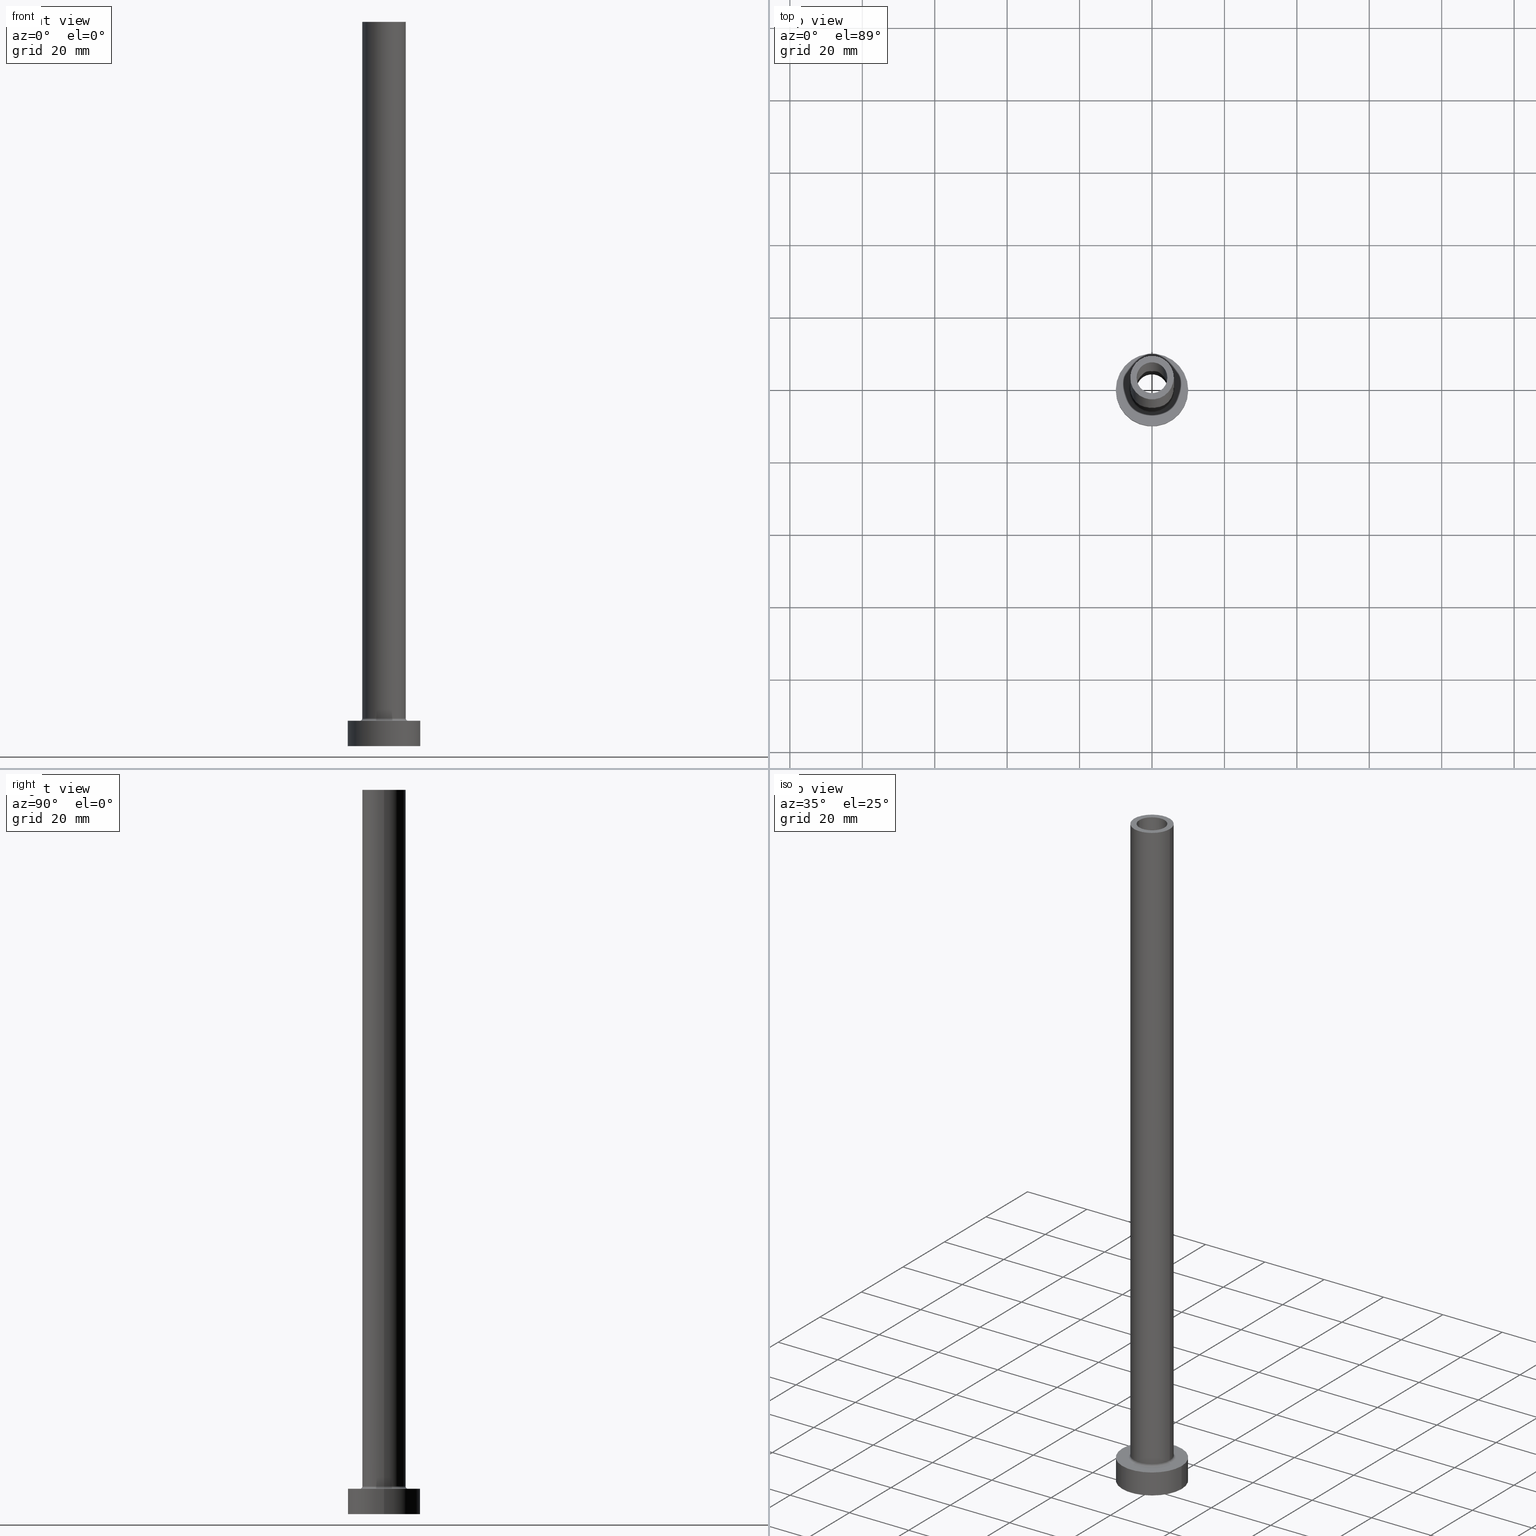
[diagram: canonical four-view strip — front | top / right | iso, engineering-drawing reading convention]
A machine part, canonical four-view strip (front | top / right | iso — engineering-drawing reading convention). The complete STEP part file that produces these views, byte-faithful:
ISO-10303-21;
HEADER;
FILE_DESCRIPTION (( 'STEP AP203' ),
    '1' );
FILE_NAME ('1fbf.STEP',
    '2023-02-13T11:57:50',
    ( '' ),
    ( '' ),
    'SwSTEP 2.0',
    'SolidWorks 2019',
    '' );
FILE_SCHEMA (( 'CONFIG_CONTROL_DESIGN' ));
ENDSEC;

DATA;
#1 = DIRECTION ( 'NONE',  ( 1.000000000000000000, 0.000000000000000000, 0.000000000000000000 ) ) ;
#2 = ADVANCED_FACE ( 'NONE', ( #433 ), #375, .F. ) ;
#3 = ORIENTED_EDGE ( 'NONE', *, *, #305, .T. ) ;
#4 = LINE ( 'NONE', #243, #90 ) ;
#5 = CARTESIAN_POINT ( 'NONE',  ( 4.400000000000000355, 5.388445916248354013E-16, 0.000000000000000000 ) ) ;
#6 = DATE_TIME_ROLE ( 'creation_date' ) ;
#7 = CARTESIAN_POINT ( 'NONE',  ( -4.400000000000000355, 0.000000000000000000, 167.4450793488832403 ) ) ;
#8 = PERSON_AND_ORGANIZATION ( #291, #121 ) ;
#9 = EDGE_CURVE ( 'NONE', #129, #127, #275, .T. ) ;
#10 = DIRECTION ( 'NONE',  ( 0.000000000000000000, 0.000000000000000000, 1.000000000000000000 ) ) ;
#11 = DIRECTION ( 'NONE',  ( 1.000000000000000000, 0.000000000000000000, 0.000000000000000000 ) ) ;
#12 = ORIENTED_EDGE ( 'NONE', *, *, #72, .F. ) ;
#13 = FACE_OUTER_BOUND ( 'NONE', #262, .T. ) ;
#14 = CARTESIAN_POINT ( 'NONE',  ( -6.700000000000001066, 8.205133554287267548E-16, 7.000000000000006217 ) ) ;
#15 = ORIENTED_EDGE ( 'NONE', *, *, #426, .T. ) ;
#16 = EDGE_CURVE ( 'NONE', #53, #230, #4, .T. ) ;
#17 = CARTESIAN_POINT ( 'NONE',  ( 0.000000000000000000, 0.000000000000000000, 7.700000000000012612 ) ) ;
#18 = CARTESIAN_POINT ( 'NONE',  ( 0.000000000000000000, 0.000000000000000000, 200.0000000000000000 ) ) ;
#19 = EDGE_LOOP ( 'NONE', ( #204, #50 ) ) ;
#20 =( GEOMETRIC_REPRESENTATION_CONTEXT ( 3 ) GLOBAL_UNCERTAINTY_ASSIGNED_CONTEXT ( ( #393 ) ) GLOBAL_UNIT_ASSIGNED_CONTEXT ( ( #372, #442, #363 ) ) REPRESENTATION_CONTEXT ( 'NONE', 'WORKASPACE' ) );
#21 = FACE_OUTER_BOUND ( 'NONE', #318, .T. ) ;
#22 = DIRECTION ( 'NONE',  ( 0.000000000000000000, 0.000000000000000000, 1.000000000000000000 ) ) ;
#23 = ORIENTED_EDGE ( 'NONE', *, *, #369, .F. ) ;
#24 = CYLINDRICAL_SURFACE ( 'NONE', #415, 4.400000000000000355 ) ;
#25 = AXIS2_PLACEMENT_3D ( 'NONE', #56, #303, #195 ) ;
#26 = LOCAL_TIME ( 12, 57, 50.00000000000000000, #387 ) ;
#27 = CYLINDRICAL_SURFACE ( 'NONE', #25, 10.00000000000000000 ) ;
#28 = DIRECTION ( 'NONE',  ( 0.000000000000000000, -1.000000000000000000, 0.000000000000000000 ) ) ;
#29 = DIRECTION ( 'NONE',  ( -0.000000000000000000, -0.000000000000000000, -1.000000000000000000 ) ) ;
#30 = ADVANCED_FACE ( 'NONE', ( #392, #284 ), #69, .F. ) ;
#31 = ORIENTED_EDGE ( 'NONE', *, *, #172, .F. ) ;
#32 = AXIS2_PLACEMENT_3D ( 'NONE', #78, #215, #298 ) ;
#33 = ORIENTED_EDGE ( 'NONE', *, *, #223, .F. ) ;
#34 = ORIENTED_EDGE ( 'NONE', *, *, #9, .F. ) ;
#35 = ORIENTED_EDGE ( 'NONE', *, *, #288, .T. ) ;
#36 = EDGE_CURVE ( 'NONE', #123, #84, #107, .T. ) ;
#37 = CIRCLE ( 'NONE', #438, 0.7000000000000000666 ) ;
#38 = EDGE_LOOP ( 'NONE', ( #168, #255 ) ) ;
#39 = CARTESIAN_POINT ( 'NONE',  ( 0.000000000000000000, 0.000000000000000000, 200.0000000000000000 ) ) ;
#40 = CARTESIAN_POINT ( 'NONE',  ( 0.000000000000000000, 0.000000000000000000, 200.0000000000000000 ) ) ;
#41 = CARTESIAN_POINT ( 'NONE',  ( 10.00000000000000000, 1.224646799147353256E-15, 0.000000000000000000 ) ) ;
#42 = EDGE_CURVE ( 'NONE', #443, #45, #117, .T. ) ;
#43 = DIRECTION ( 'NONE',  ( -1.000000000000000000, 0.000000000000000000, 0.000000000000000000 ) ) ;
#44 = PERSON_AND_ORGANIZATION_ROLE ( 'design_owner' ) ;
#45 = VERTEX_POINT ( 'NONE', #203 ) ;
#46 = DIRECTION ( 'NONE',  ( 1.000000000000000000, 0.000000000000000000, 0.000000000000000000 ) ) ;
#47 = DIRECTION ( 'NONE',  ( 1.000000000000000000, 0.000000000000000000, 0.000000000000000000 ) ) ;
#48 = EDGE_CURVE ( 'NONE', #207, #140, #145, .T. ) ;
#49 = CARTESIAN_POINT ( 'NONE',  ( 6.700000000000001066, 0.000000000000000000, 7.000000000000006217 ) ) ;
#50 = ORIENTED_EDGE ( 'NONE', *, *, #355, .T. ) ;
#51 = CARTESIAN_POINT ( 'NONE',  ( 0.000000000000000000, 0.000000000000000000, 155.0000000000000284 ) ) ;
#52 = AXIS2_PLACEMENT_3D ( 'NONE', #94, #348, #126 ) ;
#53 = VERTEX_POINT ( 'NONE', #396 ) ;
#54 = DIRECTION ( 'NONE',  ( 0.000000000000000000, 0.000000000000000000, -1.000000000000000000 ) ) ;
#55 = VERTEX_POINT ( 'NONE', #368 ) ;
#56 = CARTESIAN_POINT ( 'NONE',  ( 0.000000000000000000, 0.000000000000000000, 7.000000000000000000 ) ) ;
#57 = DIRECTION ( 'NONE',  ( 0.000000000000000000, 0.000000000000000000, 1.000000000000000000 ) ) ;
#58 = VECTOR ( 'NONE', #354, 1000.000000000000000 ) ;
#59 = CIRCLE ( 'NONE', #314, 4.250000000000000000 ) ;
#60 = DIRECTION ( 'NONE',  ( -0.000000000000000000, -0.000000000000000000, -1.000000000000000000 ) ) ;
#61 = CC_DESIGN_PERSON_AND_ORGANIZATION_ASSIGNMENT ( #448, #229, ( #198 ) ) ;
#62 = DIRECTION ( 'NONE',  ( -0.000000000000000000, -0.000000000000000000, -1.000000000000000000 ) ) ;
#63 = CARTESIAN_POINT ( 'NONE',  ( 0.000000000000000000, 0.000000000000000000, 0.000000000000000000 ) ) ;
#64 = EDGE_LOOP ( 'NONE', ( #454, #391 ) ) ;
#65 = CC_DESIGN_APPROVAL ( #347, ( #267 ) ) ;
#66 = ORIENTED_EDGE ( 'NONE', *, *, #440, .T. ) ;
#67 = VERTEX_POINT ( 'NONE', #49 ) ;
#68 = ADVANCED_FACE ( 'NONE', ( #331 ), #312, .F. ) ;
#69 = PLANE ( 'NONE',  #428 ) ;
#70 = CARTESIAN_POINT ( 'NONE',  ( 0.000000000000000000, 0.000000000000000000, 155.0000000000000284 ) ) ;
#71 = CALENDAR_DATE ( 2023, 13, 2 ) ;
#72 = EDGE_CURVE ( 'NONE', #353, #129, #226, .T. ) ;
#73 = DIRECTION ( 'NONE',  ( 0.000000000000000000, 0.000000000000000000, 1.000000000000000000 ) ) ;
#74 = MANIFOLD_SOLID_BREP ( 'Odebrat vysunut�m4', #256 ) ;
#75 = APPROVAL_ROLE ( '' ) ;
#76 = DESIGN_CONTEXT ( 'detailed design', #86, 'design' ) ;
#77 = DIRECTION ( 'NONE',  ( 0.000000000000000000, 0.000000000000000000, -1.000000000000000000 ) ) ;
#78 = CARTESIAN_POINT ( 'NONE',  ( 0.000000000000000000, 0.000000000000000000, 155.0000000000000284 ) ) ;
#79 = CC_DESIGN_SECURITY_CLASSIFICATION ( #198, ( #267 ) ) ;
#80 = CC_DESIGN_PERSON_AND_ORGANIZATION_ASSIGNMENT ( #214, #309, ( #267 ) ) ;
#81 = EDGE_LOOP ( 'NONE', ( #125, #414 ) ) ;
#82 = DIRECTION ( 'NONE',  ( 1.000000000000000000, 0.000000000000000000, 0.000000000000000000 ) ) ;
#83 = DATE_AND_TIME ( #178, #292 ) ;
#84 = VERTEX_POINT ( 'NONE', #362 ) ;
#85 = ADVANCED_BREP_SHAPE_REPRESENTATION ( '1fbf', ( #74, #446 ), #20 ) ;
#86 = APPLICATION_CONTEXT ( 'configuration controlled 3d designs of mechanical parts and assemblies' ) ;
#87 = DIRECTION ( 'NONE',  ( 0.000000000000000000, 0.000000000000000000, -1.000000000000000000 ) ) ;
#88 = ORIENTED_EDGE ( 'NONE', *, *, #199, .F. ) ;
#89 = DIRECTION ( 'NONE',  ( 0.000000000000000000, 0.000000000000000000, 1.000000000000000000 ) ) ;
#90 = VECTOR ( 'NONE', #394, 1000.000000000000000 ) ;
#91 = AXIS2_PLACEMENT_3D ( 'NONE', #371, #10, #187 ) ;
#92 = ORIENTED_EDGE ( 'NONE', *, *, #36, .F. ) ;
#93 = APPROVAL ( #115, 'NEUR�EN�' ) ;
#94 = CARTESIAN_POINT ( 'NONE',  ( 0.000000000000000000, 0.000000000000000000, 0.000000000000000000 ) ) ;
#95 = CYLINDRICAL_SURFACE ( 'NONE', #421, 6.000000000000000888 ) ;
#96 = CYLINDRICAL_SURFACE ( 'NONE', #228, 4.250000000000000000 ) ;
#97 = AXIS2_PLACEMENT_3D ( 'NONE', #40, #245, #148 ) ;
#98 = PRODUCT_RELATED_PRODUCT_CATEGORY ( 'detail', '', ( #220 ) ) ;
#99 = CARTESIAN_POINT ( 'NONE',  ( -6.700000000000001066, 8.205133554287267548E-16, 7.700000000000012612 ) ) ;
#100 = ORIENTED_EDGE ( 'NONE', *, *, #412, .F. ) ;
#101 = ORIENTED_EDGE ( 'NONE', *, *, #288, .F. ) ;
#102 = AXIS2_PLACEMENT_3D ( 'NONE', #143, #437, #285 ) ;
#103 = EDGE_CURVE ( 'NONE', #435, #225, #147, .T. ) ;
#104 = DATE_TIME_ROLE ( 'classification_date' ) ;
#105 = ORIENTED_EDGE ( 'NONE', *, *, #103, .T. ) ;
#106 = CARTESIAN_POINT ( 'NONE',  ( 0.000000000000000000, 0.000000000000000000, 7.700000000000012612 ) ) ;
#107 = LINE ( 'NONE', #425, #58 ) ;
#108 = PERSON_AND_ORGANIZATION_ROLE ( 'creator' ) ;
#109 = CC_DESIGN_DATE_AND_TIME_ASSIGNMENT ( #83, #6, ( #189 ) ) ;
#110 = AXIS2_PLACEMENT_3D ( 'NONE', #99, #386, #458 ) ;
#111 = FACE_BOUND ( 'NONE', #236, .T. ) ;
#112 = CALENDAR_DATE ( 2023, 13, 2 ) ;
#113 = PLANE ( 'NONE',  #217 ) ;
#114 = CARTESIAN_POINT ( 'NONE',  ( -6.000000000000000888, 0.000000000000000000, 7.700000000000012612 ) ) ;
#115 = APPROVAL_STATUS ( 'not_yet_approved' ) ;
#116 = EDGE_LOOP ( 'NONE', ( #186, #265, #188, #173 ) ) ;
#117 = CIRCLE ( 'NONE', #138, 6.000000000000000888 ) ;
#118 = DIRECTION ( 'NONE',  ( 0.000000000000000000, 0.000000000000000000, 1.000000000000000000 ) ) ;
#119 = ADVANCED_FACE ( 'NONE', ( #218, #13 ), #113, .T. ) ;
#120 = AXIS2_PLACEMENT_3D ( 'NONE', #418, #57, #131 ) ;
#121 = ORGANIZATION ( 'NEUR�EN�', 'NEUR�EN�', '' ) ;
#122 = PERSON_AND_ORGANIZATION ( #291, #121 ) ;
#123 = VERTEX_POINT ( 'NONE', #364 ) ;
#124 = FACE_OUTER_BOUND ( 'NONE', #316, .T. ) ;
#125 = ORIENTED_EDGE ( 'NONE', *, *, #341, .F. ) ;
#126 = DIRECTION ( 'NONE',  ( 1.000000000000000000, 0.000000000000000000, 0.000000000000000000 ) ) ;
#127 = VERTEX_POINT ( 'NONE', #41 ) ;
#128 = DIRECTION ( 'NONE',  ( -0.000000000000000000, -0.000000000000000000, -1.000000000000000000 ) ) ;
#129 = VERTEX_POINT ( 'NONE', #251 ) ;
#130 = FACE_OUTER_BOUND ( 'NONE', #304, .T. ) ;
#131 = DIRECTION ( 'NONE',  ( 1.000000000000000000, 0.000000000000000000, 0.000000000000000000 ) ) ;
#132 = CC_DESIGN_PERSON_AND_ORGANIZATION_ASSIGNMENT ( #8, #44, ( #220 ) ) ;
#133 = SECURITY_CLASSIFICATION_LEVEL ( 'unclassified' ) ;
#134 = LINE ( 'NONE', #234, #377 ) ;
#135 = DIRECTION ( 'NONE',  ( 0.000000000000000000, 0.000000000000000000, 1.000000000000000000 ) ) ;
#136 = DIRECTION ( 'NONE',  ( 1.000000000000000000, 0.000000000000000000, 0.000000000000000000 ) ) ;
#137 = ORIENTED_EDGE ( 'NONE', *, *, #420, .T. ) ;
#138 = AXIS2_PLACEMENT_3D ( 'NONE', #238, #276, #1 ) ;
#139 = AXIS2_PLACEMENT_3D ( 'NONE', #196, #269, #381 ) ;
#140 = VERTEX_POINT ( 'NONE', #244 ) ;
#141 = ORIENTED_EDGE ( 'NONE', *, *, #42, .F. ) ;
#142 = EDGE_CURVE ( 'NONE', #55, #53, #405, .T. ) ;
#143 = CARTESIAN_POINT ( 'NONE',  ( 0.000000000000000000, 0.000000000000000000, 155.0000000000000284 ) ) ;
#144 = APPROVAL_STATUS ( 'not_yet_approved' ) ;
#145 = CIRCLE ( 'NONE', #429, 6.000000000000000888 ) ;
#146 = VECTOR ( 'NONE', #29, 1000.000000000000000 ) ;
#147 = LINE ( 'NONE', #211, #240 ) ;
#148 = DIRECTION ( 'NONE',  ( -1.000000000000000000, 0.000000000000000000, 0.000000000000000000 ) ) ;
#149 = DIRECTION ( 'NONE',  ( 1.000000000000000000, 0.000000000000000000, -0.000000000000000000 ) ) ;
#150 = ORIENTED_EDGE ( 'NONE', *, *, #311, .T. ) ;
#151 = ADVANCED_FACE ( 'NONE', ( #213 ), #325, .F. ) ;
#152 = DIRECTION ( 'NONE',  ( 0.000000000000000000, 0.000000000000000000, 1.000000000000000000 ) ) ;
#153 = ORIENTED_EDGE ( 'NONE', *, *, #237, .T. ) ;
#154 = CARTESIAN_POINT ( 'NONE',  ( 0.000000000000000000, 0.000000000000000000, 7.700000000000012612 ) ) ;
#155 = AXIS2_PLACEMENT_3D ( 'NONE', #457, #455, #270 ) ;
#156 = APPLICATION_PROTOCOL_DEFINITION ( 'international standard', 'config_control_design', 1994, #86 ) ;
#157 = ORIENTED_EDGE ( 'NONE', *, *, #142, .T. ) ;
#158 = CARTESIAN_POINT ( 'NONE',  ( 0.000000000000000000, 0.000000000000000000, 167.4450793488832403 ) ) ;
#159 = VERTEX_POINT ( 'NONE', #402 ) ;
#160 = DIRECTION ( 'NONE',  ( 0.000000000000000000, 0.000000000000000000, -1.000000000000000000 ) ) ;
#161 = CARTESIAN_POINT ( 'NONE',  ( 0.000000000000000000, 0.000000000000000000, 7.000000000000000000 ) ) ;
#162 = VECTOR ( 'NONE', #321, 1000.000000000000000 ) ;
#163 = AXIS2_PLACEMENT_3D ( 'NONE', #18, #184, #47 ) ;
#164 = LINE ( 'NONE', #374, #306 ) ;
#165 = CYLINDRICAL_SURFACE ( 'NONE', #155, 10.00000000000000000 ) ;
#166 = DIRECTION ( 'NONE',  ( 1.000000000000000000, 0.000000000000000000, 0.000000000000000000 ) ) ;
#167 = CALENDAR_DATE ( 2023, 13, 2 ) ;
#168 = ORIENTED_EDGE ( 'NONE', *, *, #403, .T. ) ;
#169 = CIRCLE ( 'NONE', #102, 4.400000000000000355 ) ;
#170 = PERSON_AND_ORGANIZATION ( #291, #121 ) ;
#171 = CARTESIAN_POINT ( 'NONE',  ( 10.00000000000000000, 1.224646799147353256E-15, 7.000000000000000000 ) ) ;
#172 = EDGE_CURVE ( 'NONE', #45, #443, #319, .T. ) ;
#173 = ORIENTED_EDGE ( 'NONE', *, *, #103, .F. ) ;
#174 = CIRCLE ( 'NONE', #110, 0.7000000000000000666 ) ;
#175 = EDGE_CURVE ( 'NONE', #84, #225, #241, .T. ) ;
#176 = ORIENTED_EDGE ( 'NONE', *, *, #311, .F. ) ;
#177 = LINE ( 'NONE', #7, #344 ) ;
#178 = CALENDAR_DATE ( 2023, 13, 2 ) ;
#179 = DIRECTION ( 'NONE',  ( 0.000000000000000000, 0.000000000000000000, 1.000000000000000000 ) ) ;
#180 = DIRECTION ( 'NONE',  ( 1.000000000000000000, 0.000000000000000000, 0.000000000000000000 ) ) ;
#181 = CIRCLE ( 'NONE', #328, 4.400000000000000355 ) ;
#182 = DIRECTION ( 'NONE',  ( 0.000000000000000000, 0.000000000000000000, -1.000000000000000000 ) ) ;
#183 = DIRECTION ( 'NONE',  ( 1.000000000000000000, 0.000000000000000000, 0.000000000000000000 ) ) ;
#184 = DIRECTION ( 'NONE',  ( 0.000000000000000000, 0.000000000000000000, 1.000000000000000000 ) ) ;
#185 = APPLICATION_CONTEXT ( 'configuration controlled 3d designs of mechanical parts and assemblies' ) ;
#186 = ORIENTED_EDGE ( 'NONE', *, *, #449, .T. ) ;
#187 = DIRECTION ( 'NONE',  ( 1.000000000000000000, 0.000000000000000000, 0.000000000000000000 ) ) ;
#188 = ORIENTED_EDGE ( 'NONE', *, *, #403, .F. ) ;
#189 = PRODUCT_DEFINITION ( 'NEZN�M�', '', #267, #76 ) ;
#190 = DIRECTION ( 'NONE',  ( 0.000000000000000000, 0.000000000000000000, 1.000000000000000000 ) ) ;
#191 = AXIS2_PLACEMENT_3D ( 'NONE', #39, #408, #82 ) ;
#192 = VERTEX_POINT ( 'NONE', #360 ) ;
#193 = CARTESIAN_POINT ( 'NONE',  ( 0.000000000000000000, 0.000000000000000000, 200.0000000000000000 ) ) ;
#194 = ORIENTED_EDGE ( 'NONE', *, *, #42, .T. ) ;
#195 = DIRECTION ( 'NONE',  ( -1.000000000000000000, 0.000000000000000000, 0.000000000000000000 ) ) ;
#196 = CARTESIAN_POINT ( 'NONE',  ( 0.000000000000000000, 0.000000000000000000, 7.000000000000000000 ) ) ;
#197 = AXIS2_PLACEMENT_3D ( 'NONE', #70, #73, #46 ) ;
#198 = SECURITY_CLASSIFICATION ( '', '', #133 ) ;
#199 = EDGE_CURVE ( 'NONE', #55, #159, #177, .T. ) ;
#200 = CARTESIAN_POINT ( 'NONE',  ( 0.000000000000000000, 0.000000000000000000, 7.000000000000000000 ) ) ;
#201 = LINE ( 'NONE', #349, #146 ) ;
#202 = APPROVAL_ROLE ( '' ) ;
#203 = CARTESIAN_POINT ( 'NONE',  ( 6.000000000000000888, 7.347880794884120722E-16, 7.700000000000012612 ) ) ;
#204 = ORIENTED_EDGE ( 'NONE', *, *, #72, .T. ) ;
#205 = APPROVAL_DATE_TIME ( #282, #359 ) ;
#206 = EDGE_LOOP ( 'NONE', ( #92, #461, #105, #335 ) ) ;
#207 = VERTEX_POINT ( 'NONE', #444 ) ;
#208 = ADVANCED_FACE ( 'NONE', ( #329, #253 ), #295, .F. ) ;
#209 = ORIENTED_EDGE ( 'NONE', *, *, #440, .F. ) ;
#210 = CIRCLE ( 'NONE', #258, 4.250000000000000000 ) ;
#211 = CARTESIAN_POINT ( 'NONE',  ( -4.250000000000000000, 0.000000000000000000, 200.0000000000000000 ) ) ;
#212 = CYLINDRICAL_SURFACE ( 'NONE', #97, 6.000000000000000888 ) ;
#213 = FACE_OUTER_BOUND ( 'NONE', #116, .T. ) ;
#214 = PERSON_AND_ORGANIZATION ( #291, #121 ) ;
#215 = DIRECTION ( 'NONE',  ( 0.000000000000000000, 0.000000000000000000, 1.000000000000000000 ) ) ;
#216 = COORDINATED_UNIVERSAL_TIME_OFFSET ( 1, 0, .AHEAD. ) ;
#217 = AXIS2_PLACEMENT_3D ( 'NONE', #293, #399, #149 ) ;
#218 = FACE_BOUND ( 'NONE', #219, .T. ) ;
#219 = EDGE_LOOP ( 'NONE', ( #376, #100 ) ) ;
#220 = PRODUCT ( '1fbf', '1fbf', '', ( #286 ) ) ;
#221 = DIRECTION ( 'NONE',  ( 0.000000000000000000, 0.000000000000000000, 1.000000000000000000 ) ) ;
#222 = APPROVAL_DATE_TIME ( #249, #347 ) ;
#223 = EDGE_CURVE ( 'NONE', #140, #207, #279, .T. ) ;
#224 = DIRECTION ( 'NONE',  ( -1.000000000000000000, 0.000000000000000000, 0.000000000000000000 ) ) ;
#225 = VERTEX_POINT ( 'NONE', #322 ) ;
#226 = CIRCLE ( 'NONE', #91, 10.00000000000000000 ) ;
#227 = DIRECTION ( 'NONE',  ( -1.000000000000000000, 0.000000000000000000, 0.000000000000000000 ) ) ;
#228 = AXIS2_PLACEMENT_3D ( 'NONE', #310, #87, #224 ) ;
#229 = PERSON_AND_ORGANIZATION_ROLE ( 'classification_officer' ) ;
#230 = VERTEX_POINT ( 'NONE', #5 ) ;
#231 = FACE_OUTER_BOUND ( 'NONE', #380, .T. ) ;
#232 = DIRECTION ( 'NONE',  ( -1.000000000000000000, 0.000000000000000000, 0.000000000000000000 ) ) ;
#233 = DIRECTION ( 'NONE',  ( -0.000000000000000000, -0.000000000000000000, -1.000000000000000000 ) ) ;
#234 = CARTESIAN_POINT ( 'NONE',  ( -10.00000000000000000, 0.000000000000000000, 7.000000000000000000 ) ) ;
#235 = DATE_AND_TIME ( #167, #280 ) ;
#236 = EDGE_LOOP ( 'NONE', ( #339, #150 ) ) ;
#237 = EDGE_CURVE ( 'NONE', #53, #55, #169, .T. ) ;
#238 = CARTESIAN_POINT ( 'NONE',  ( 0.000000000000000000, 0.000000000000000000, 7.700000000000012612 ) ) ;
#239 = ORIENTED_EDGE ( 'NONE', *, *, #426, .F. ) ;
#240 = VECTOR ( 'NONE', #401, 1000.000000000000000 ) ;
#241 = CIRCLE ( 'NONE', #32, 4.250000000000000000 ) ;
#242 = EDGE_LOOP ( 'NONE', ( #141, #137, #330, #388 ) ) ;
#243 = CARTESIAN_POINT ( 'NONE',  ( 4.400000000000000355, 5.388445916248354013E-16, 167.4450793488832403 ) ) ;
#244 = CARTESIAN_POINT ( 'NONE',  ( 6.000000000000000888, 7.347880794884120722E-16, 200.0000000000000000 ) ) ;
#245 = DIRECTION ( 'NONE',  ( -0.000000000000000000, -0.000000000000000000, -1.000000000000000000 ) ) ;
#246 = CIRCLE ( 'NONE', #52, 4.400000000000000355 ) ;
#247 = LOCAL_TIME ( 12, 57, 50.00000000000000000, #404 ) ;
#248 = FACE_OUTER_BOUND ( 'NONE', #19, .T. ) ;
#249 = DATE_AND_TIME ( #112, #367 ) ;
#250 = ADVANCED_FACE ( 'NONE', ( #111, #248 ), #345, .T. ) ;
#251 = CARTESIAN_POINT ( 'NONE',  ( 10.00000000000000000, 1.224646799147353256E-15, 7.000000000000000000 ) ) ;
#252 = FACE_OUTER_BOUND ( 'NONE', #296, .T. ) ;
#253 = FACE_OUTER_BOUND ( 'NONE', #64, .T. ) ;
#254 = APPROVAL_ROLE ( '' ) ;
#255 = ORIENTED_EDGE ( 'NONE', *, *, #175, .T. ) ;
#256 = CLOSED_SHELL ( 'NONE', ( #151, #297, #68, #261, #378, #274, #250, #30, #456, #119, #2, #323, #208, #395 ) ) ;
#257 = AXIS2_PLACEMENT_3D ( 'NONE', #17, #179, #447 ) ;
#258 = AXIS2_PLACEMENT_3D ( 'NONE', #51, #190, #264 ) ;
#259 = DIRECTION ( 'NONE',  ( 1.000000000000000000, 0.000000000000000000, -0.000000000000000000 ) ) ;
#260 = APPROVAL_DATE_TIME ( #324, #93 ) ;
#261 = ADVANCED_FACE ( 'NONE', ( #130 ), #95, .T. ) ;
#262 = EDGE_LOOP ( 'NONE', ( #389, #300 ) ) ;
#263 = CARTESIAN_POINT ( 'NONE',  ( -10.00000000000000000, 0.000000000000000000, 7.000000000000000000 ) ) ;
#264 = DIRECTION ( 'NONE',  ( 1.000000000000000000, 0.000000000000000000, 0.000000000000000000 ) ) ;
#265 = ORIENTED_EDGE ( 'NONE', *, *, #36, .T. ) ;
#266 = CARTESIAN_POINT ( 'NONE',  ( 0.000000000000000000, 0.000000000000000000, 167.4450793488832403 ) ) ;
#267 = PRODUCT_DEFINITION_FORMATION_WITH_SPECIFIED_SOURCE ( 'LIBOVOLN�', '', #220, .NOT_KNOWN. ) ;
#268 = CC_DESIGN_PERSON_AND_ORGANIZATION_ASSIGNMENT ( #294, #108, ( #189 ) ) ;
#269 = DIRECTION ( 'NONE',  ( 0.000000000000000000, 0.000000000000000000, 1.000000000000000000 ) ) ;
#270 = DIRECTION ( 'NONE',  ( -1.000000000000000000, 0.000000000000000000, 0.000000000000000000 ) ) ;
#271 = PRODUCT_DEFINITION_SHAPE ( 'NONE', 'NONE',  #189 ) ;
#272 = CARTESIAN_POINT ( 'NONE',  ( -4.250000000000000000, 0.000000000000000000, 200.0000000000000000 ) ) ;
#273 = APPROVAL_PERSON_ORGANIZATION ( #122, #93, #254 ) ;
#274 = ADVANCED_FACE ( 'NONE', ( #124 ), #27, .T. ) ;
#275 = LINE ( 'NONE', #171, #162 ) ;
#276 = DIRECTION ( 'NONE',  ( 0.000000000000000000, 0.000000000000000000, 1.000000000000000000 ) ) ;
#277 = COORDINATED_UNIVERSAL_TIME_OFFSET ( 1, 0, .AHEAD. ) ;
#278 = EDGE_LOOP ( 'NONE', ( #283, #31, #373, #176 ) ) ;
#279 = CIRCLE ( 'NONE', #191, 6.000000000000000888 ) ;
#280 = LOCAL_TIME ( 12, 57, 50.00000000000000000, #277 ) ;
#281 = EDGE_CURVE ( 'NONE', #67, #460, #336, .T. ) ;
#282 = DATE_AND_TIME ( #423, #26 ) ;
#283 = ORIENTED_EDGE ( 'NONE', *, *, #420, .F. ) ;
#284 = FACE_OUTER_BOUND ( 'NONE', #81, .T. ) ;
#285 = DIRECTION ( 'NONE',  ( 1.000000000000000000, 0.000000000000000000, 0.000000000000000000 ) ) ;
#286 = MECHANICAL_CONTEXT ( 'NONE', #185, 'mechanical' ) ;
#287 = AXIS2_PLACEMENT_3D ( 'NONE', #106, #135, #136 ) ;
#288 = EDGE_CURVE ( 'NONE', #207, #443, #164, .T. ) ;
#289 = AXIS2_PLACEMENT_3D ( 'NONE', #158, #160, #308 ) ;
#290 = AXIS2_PLACEMENT_3D ( 'NONE', #333, #77, #43 ) ;
#291 = PERSON ( 'NEUR�EN�', 'NEUR�EN�', 'NEUR�EN�', ('NEUR�EN�'), ('NEUR�EN�'), ('NEUR�EN�') ) ;
#292 = LOCAL_TIME ( 12, 57, 50.00000000000000000, #361 ) ;
#293 = CARTESIAN_POINT ( 'NONE',  ( 0.000000000000000000, 0.000000000000000000, 200.0000000000000000 ) ) ;
#294 = PERSON_AND_ORGANIZATION ( #291, #121 ) ;
#295 = PLANE ( 'NONE',  #352 ) ;
#296 = EDGE_LOOP ( 'NONE', ( #302, #407, #35, #194 ) ) ;
#297 = ADVANCED_FACE ( 'NONE', ( #21 ), #451, .F. ) ;
#298 = DIRECTION ( 'NONE',  ( 1.000000000000000000, 0.000000000000000000, 0.000000000000000000 ) ) ;
#299 = DIRECTION ( 'NONE',  ( 1.000000000000000000, 0.000000000000000000, 0.000000000000000000 ) ) ;
#300 = ORIENTED_EDGE ( 'NONE', *, *, #223, .T. ) ;
#301 = CARTESIAN_POINT ( 'NONE',  ( 6.700000000000001066, 0.000000000000000000, 7.700000000000012612 ) ) ;
#302 = ORIENTED_EDGE ( 'NONE', *, *, #434, .F. ) ;
#303 = DIRECTION ( 'NONE',  ( -0.000000000000000000, -0.000000000000000000, -1.000000000000000000 ) ) ;
#304 = EDGE_LOOP ( 'NONE', ( #33, #450, #342, #101 ) ) ;
#305 = EDGE_CURVE ( 'NONE', #127, #192, #397, .T. ) ;
#306 = VECTOR ( 'NONE', #128, 1000.000000000000000 ) ;
#307 = FACE_OUTER_BOUND ( 'NONE', #417, .T. ) ;
#308 = DIRECTION ( 'NONE',  ( -1.000000000000000000, 0.000000000000000000, 0.000000000000000000 ) ) ;
#309 = PERSON_AND_ORGANIZATION_ROLE ( 'design_supplier' ) ;
#310 = CARTESIAN_POINT ( 'NONE',  ( 0.000000000000000000, 0.000000000000000000, 200.0000000000000000 ) ) ;
#311 = EDGE_CURVE ( 'NONE', #460, #67, #459, .T. ) ;
#312 = TOROIDAL_SURFACE ( 'NONE', #257, 6.700000000000001066, 0.6999999999999999556 ) ;
#313 = EDGE_LOOP ( 'NONE', ( #23, #209 ) ) ;
#314 = AXIS2_PLACEMENT_3D ( 'NONE', #193, #22, #166 ) ;
#315 = ORIENTED_EDGE ( 'NONE', *, *, #355, .F. ) ;
#316 = EDGE_LOOP ( 'NONE', ( #34, #12, #15, #332 ) ) ;
#317 = CC_DESIGN_PERSON_AND_ORGANIZATION_ASSIGNMENT ( #400, #365, ( #267 ) ) ;
#318 = EDGE_LOOP ( 'NONE', ( #157, #356, #66, #88 ) ) ;
#319 = CIRCLE ( 'NONE', #327, 6.000000000000000888 ) ;
#320 = CIRCLE ( 'NONE', #163, 4.250000000000000000 ) ;
#321 = DIRECTION ( 'NONE',  ( -0.000000000000000000, -0.000000000000000000, -1.000000000000000000 ) ) ;
#322 = CARTESIAN_POINT ( 'NONE',  ( -4.250000000000000000, 0.000000000000000000, 155.0000000000000284 ) ) ;
#323 = ADVANCED_FACE ( 'NONE', ( #231 ), #24, .F. ) ;
#324 = DATE_AND_TIME ( #71, #247 ) ;
#325 = CYLINDRICAL_SURFACE ( 'NONE', #290, 4.250000000000000000 ) ;
#326 = APPLICATION_PROTOCOL_DEFINITION ( 'international standard', 'config_control_design', 1994, #185 ) ;
#327 = AXIS2_PLACEMENT_3D ( 'NONE', #154, #152, #183 ) ;
#328 = AXIS2_PLACEMENT_3D ( 'NONE', #422, #439, #11 ) ;
#329 = FACE_BOUND ( 'NONE', #38, .T. ) ;
#330 = ORIENTED_EDGE ( 'NONE', *, *, #281, .F. ) ;
#331 = FACE_OUTER_BOUND ( 'NONE', #242, .T. ) ;
#332 = ORIENTED_EDGE ( 'NONE', *, *, #341, .T. ) ;
#333 = CARTESIAN_POINT ( 'NONE',  ( 0.000000000000000000, 0.000000000000000000, 200.0000000000000000 ) ) ;
#334 = DIRECTION ( 'NONE',  ( 0.000000000000000000, 0.000000000000000000, 1.000000000000000000 ) ) ;
#335 = ORIENTED_EDGE ( 'NONE', *, *, #175, .F. ) ;
#336 = CIRCLE ( 'NONE', #445, 6.700000000000001066 ) ;
#337 = APPROVAL_PERSON_ORGANIZATION ( #170, #359, #202 ) ;
#338 = CARTESIAN_POINT ( 'NONE',  ( 0.000000000000000000, 0.000000000000000000, 200.0000000000000000 ) ) ;
#339 = ORIENTED_EDGE ( 'NONE', *, *, #281, .T. ) ;
#340 = CARTESIAN_POINT ( 'NONE',  ( 0.000000000000000000, 0.000000000000000000, 7.000000000000000000 ) ) ;
#341 = EDGE_CURVE ( 'NONE', #192, #127, #384, .T. ) ;
#342 = ORIENTED_EDGE ( 'NONE', *, *, #172, .T. ) ;
#343 = DIRECTION ( 'NONE',  ( 0.000000000000000000, 0.000000000000000000, 1.000000000000000000 ) ) ;
#344 = VECTOR ( 'NONE', #182, 1000.000000000000000 ) ;
#345 = PLANE ( 'NONE',  #139 ) ;
#346 = CC_DESIGN_APPROVAL ( #359, ( #198 ) ) ;
#347 = APPROVAL ( #144, 'NEUR�EN�' ) ;
#348 = DIRECTION ( 'NONE',  ( -0.000000000000000000, -0.000000000000000000, -1.000000000000000000 ) ) ;
#349 = CARTESIAN_POINT ( 'NONE',  ( 6.000000000000000888, 7.347880794884120722E-16, 200.0000000000000000 ) ) ;
#350 = SHAPE_DEFINITION_REPRESENTATION ( #271, #85 ) ;
#351 = CARTESIAN_POINT ( 'NONE',  ( 0.000000000000000000, 0.000000000000000000, 200.0000000000000000 ) ) ;
#352 = AXIS2_PLACEMENT_3D ( 'NONE', #441, #118, #259 ) ;
#353 = VERTEX_POINT ( 'NONE', #263 ) ;
#354 = DIRECTION ( 'NONE',  ( 0.000000000000000000, 0.000000000000000000, -1.000000000000000000 ) ) ;
#355 = EDGE_CURVE ( 'NONE', #129, #353, #358, .T. ) ;
#356 = ORIENTED_EDGE ( 'NONE', *, *, #16, .T. ) ;
#357 = DIRECTION ( 'NONE',  ( 0.000000000000000000, 0.000000000000000000, 1.000000000000000000 ) ) ;
#358 = CIRCLE ( 'NONE', #430, 10.00000000000000000 ) ;
#359 = APPROVAL ( #424, 'NEUR�EN�' ) ;
#360 = CARTESIAN_POINT ( 'NONE',  ( -10.00000000000000000, 0.000000000000000000, 0.000000000000000000 ) ) ;
#361 = COORDINATED_UNIVERSAL_TIME_OFFSET ( 1, 0, .AHEAD. ) ;
#362 = CARTESIAN_POINT ( 'NONE',  ( 4.250000000000000000, 5.204748896376249713E-16, 155.0000000000000284 ) ) ;
#363 =( NAMED_UNIT ( * ) SI_UNIT ( $, .STERADIAN. ) SOLID_ANGLE_UNIT ( ) );
#364 = CARTESIAN_POINT ( 'NONE',  ( 4.250000000000000000, 5.204748896376249713E-16, 200.0000000000000000 ) ) ;
#365 = PERSON_AND_ORGANIZATION_ROLE ( 'creator' ) ;
#366 = AXIS2_PLACEMENT_3D ( 'NONE', #340, #233, #453 ) ;
#367 = LOCAL_TIME ( 12, 57, 50.00000000000000000, #216 ) ;
#368 = CARTESIAN_POINT ( 'NONE',  ( -4.400000000000000355, 0.000000000000000000, 155.0000000000000284 ) ) ;
#369 = EDGE_CURVE ( 'NONE', #159, #230, #246, .T. ) ;
#370 = ORIENTED_EDGE ( 'NONE', *, *, #9, .T. ) ;
#371 = CARTESIAN_POINT ( 'NONE',  ( 0.000000000000000000, 0.000000000000000000, 7.000000000000000000 ) ) ;
#372 =( LENGTH_UNIT ( ) NAMED_UNIT ( * ) SI_UNIT ( .MILLI., .METRE. ) );
#373 = ORIENTED_EDGE ( 'NONE', *, *, #390, .T. ) ;
#374 = CARTESIAN_POINT ( 'NONE',  ( -6.000000000000000888, 0.000000000000000000, 200.0000000000000000 ) ) ;
#375 = TOROIDAL_SURFACE ( 'NONE', #287, 6.700000000000001066, 0.6999999999999999556 ) ;
#376 = ORIENTED_EDGE ( 'NONE', *, *, #449, .F. ) ;
#377 = VECTOR ( 'NONE', #62, 1000.000000000000000 ) ;
#378 = ADVANCED_FACE ( 'NONE', ( #307 ), #165, .T. ) ;
#379 = DIRECTION ( 'NONE',  ( -0.000000000000000000, -0.000000000000000000, -1.000000000000000000 ) ) ;
#380 = EDGE_LOOP ( 'NONE', ( #411, #153, #452, #431 ) ) ;
#381 = DIRECTION ( 'NONE',  ( 1.000000000000000000, 0.000000000000000000, -0.000000000000000000 ) ) ;
#382 = CARTESIAN_POINT ( 'NONE',  ( 0.000000000000000000, 0.000000000000000000, 0.000000000000000000 ) ) ;
#383 = CC_DESIGN_DATE_AND_TIME_ASSIGNMENT ( #235, #104, ( #198 ) ) ;
#384 = CIRCLE ( 'NONE', #406, 10.00000000000000000 ) ;
#385 = DIRECTION ( 'NONE',  ( 0.000000000000000000, 0.000000000000000000, -1.000000000000000000 ) ) ;
#386 = DIRECTION ( 'NONE',  ( 1.224646799147353207E-16, 1.000000000000000000, -0.000000000000000000 ) ) ;
#387 = COORDINATED_UNIVERSAL_TIME_OFFSET ( 1, 0, .AHEAD. ) ;
#388 = ORIENTED_EDGE ( 'NONE', *, *, #390, .F. ) ;
#389 = ORIENTED_EDGE ( 'NONE', *, *, #48, .T. ) ;
#390 = EDGE_CURVE ( 'NONE', #45, #67, #37, .T. ) ;
#391 = ORIENTED_EDGE ( 'NONE', *, *, #237, .F. ) ;
#392 = FACE_BOUND ( 'NONE', #313, .T. ) ;
#393 = UNCERTAINTY_MEASURE_WITH_UNIT (LENGTH_MEASURE( 1.000000000000000082E-05 ), #372, 'distance_accuracy_value', 'NONE');
#394 = DIRECTION ( 'NONE',  ( 0.000000000000000000, 0.000000000000000000, -1.000000000000000000 ) ) ;
#395 = ADVANCED_FACE ( 'NONE', ( #419 ), #96, .F. ) ;
#396 = CARTESIAN_POINT ( 'NONE',  ( 4.400000000000000355, 5.388445916248354013E-16, 155.0000000000000284 ) ) ;
#397 = CIRCLE ( 'NONE', #120, 10.00000000000000000 ) ;
#398 = CC_DESIGN_APPROVAL ( #93, ( #189 ) ) ;
#399 = DIRECTION ( 'NONE',  ( 0.000000000000000000, 0.000000000000000000, 1.000000000000000000 ) ) ;
#400 = PERSON_AND_ORGANIZATION ( #291, #121 ) ;
#401 = DIRECTION ( 'NONE',  ( 0.000000000000000000, 0.000000000000000000, -1.000000000000000000 ) ) ;
#402 = CARTESIAN_POINT ( 'NONE',  ( -4.400000000000000355, 0.000000000000000000, 0.000000000000000000 ) ) ;
#403 = EDGE_CURVE ( 'NONE', #225, #84, #210, .T. ) ;
#404 = COORDINATED_UNIVERSAL_TIME_OFFSET ( 1, 0, .AHEAD. ) ;
#405 = CIRCLE ( 'NONE', #197, 4.400000000000000355 ) ;
#406 = AXIS2_PLACEMENT_3D ( 'NONE', #382, #343, #413 ) ;
#407 = ORIENTED_EDGE ( 'NONE', *, *, #48, .F. ) ;
#408 = DIRECTION ( 'NONE',  ( 0.000000000000000000, 0.000000000000000000, 1.000000000000000000 ) ) ;
#409 = PERSON_AND_ORGANIZATION ( #291, #121 ) ;
#410 = DIRECTION ( 'NONE',  ( 1.000000000000000000, 0.000000000000000000, 0.000000000000000000 ) ) ;
#411 = ORIENTED_EDGE ( 'NONE', *, *, #16, .F. ) ;
#412 = EDGE_CURVE ( 'NONE', #123, #435, #59, .T. ) ;
#413 = DIRECTION ( 'NONE',  ( 1.000000000000000000, 0.000000000000000000, 0.000000000000000000 ) ) ;
#414 = ORIENTED_EDGE ( 'NONE', *, *, #305, .F. ) ;
#415 = AXIS2_PLACEMENT_3D ( 'NONE', #266, #54, #232 ) ;
#416 = DIRECTION ( 'NONE',  ( 1.000000000000000000, 0.000000000000000000, 0.000000000000000000 ) ) ;
#417 = EDGE_LOOP ( 'NONE', ( #315, #370, #3, #239 ) ) ;
#418 = CARTESIAN_POINT ( 'NONE',  ( 0.000000000000000000, 0.000000000000000000, 0.000000000000000000 ) ) ;
#419 = FACE_OUTER_BOUND ( 'NONE', #206, .T. ) ;
#420 = EDGE_CURVE ( 'NONE', #443, #460, #174, .T. ) ;
#421 = AXIS2_PLACEMENT_3D ( 'NONE', #338, #379, #227 ) ;
#422 = CARTESIAN_POINT ( 'NONE',  ( 0.000000000000000000, 0.000000000000000000, 0.000000000000000000 ) ) ;
#423 = CALENDAR_DATE ( 2023, 13, 2 ) ;
#424 = APPROVAL_STATUS ( 'not_yet_approved' ) ;
#425 = CARTESIAN_POINT ( 'NONE',  ( 4.250000000000000000, 5.204748896376249713E-16, 200.0000000000000000 ) ) ;
#426 = EDGE_CURVE ( 'NONE', #353, #192, #134, .T. ) ;
#427 = DIRECTION ( 'NONE',  ( 1.000000000000000000, 0.000000000000000000, -0.000000000000000000 ) ) ;
#428 = AXIS2_PLACEMENT_3D ( 'NONE', #63, #357, #427 ) ;
#429 = AXIS2_PLACEMENT_3D ( 'NONE', #351, #221, #299 ) ;
#430 = AXIS2_PLACEMENT_3D ( 'NONE', #161, #89, #416 ) ;
#431 = ORIENTED_EDGE ( 'NONE', *, *, #369, .T. ) ;
#432 = APPROVAL_PERSON_ORGANIZATION ( #409, #347, #75 ) ;
#433 = FACE_OUTER_BOUND ( 'NONE', #278, .T. ) ;
#434 = EDGE_CURVE ( 'NONE', #140, #45, #201, .T. ) ;
#435 = VERTEX_POINT ( 'NONE', #272 ) ;
#436 = CARTESIAN_POINT ( 'NONE',  ( 0.000000000000000000, 0.000000000000000000, 0.000000000000000000 ) ) ;
#437 = DIRECTION ( 'NONE',  ( 0.000000000000000000, 0.000000000000000000, 1.000000000000000000 ) ) ;
#438 = AXIS2_PLACEMENT_3D ( 'NONE', #301, #28, #385 ) ;
#439 = DIRECTION ( 'NONE',  ( -0.000000000000000000, -0.000000000000000000, -1.000000000000000000 ) ) ;
#440 = EDGE_CURVE ( 'NONE', #230, #159, #181, .T. ) ;
#441 = CARTESIAN_POINT ( 'NONE',  ( 0.000000000000000000, 0.000000000000000000, 155.0000000000000284 ) ) ;
#442 =( NAMED_UNIT ( * ) PLANE_ANGLE_UNIT ( ) SI_UNIT ( $, .RADIAN. ) );
#443 = VERTEX_POINT ( 'NONE', #114 ) ;
#444 = CARTESIAN_POINT ( 'NONE',  ( -6.000000000000000888, 0.000000000000000000, 200.0000000000000000 ) ) ;
#445 = AXIS2_PLACEMENT_3D ( 'NONE', #200, #60, #410 ) ;
#446 = AXIS2_PLACEMENT_3D ( 'NONE', #436, #334, #180 ) ;
#447 = DIRECTION ( 'NONE',  ( 1.000000000000000000, 0.000000000000000000, 0.000000000000000000 ) ) ;
#448 = PERSON_AND_ORGANIZATION ( #291, #121 ) ;
#449 = EDGE_CURVE ( 'NONE', #435, #123, #320, .T. ) ;
#450 = ORIENTED_EDGE ( 'NONE', *, *, #434, .T. ) ;
#451 = CYLINDRICAL_SURFACE ( 'NONE', #289, 4.400000000000000355 ) ;
#452 = ORIENTED_EDGE ( 'NONE', *, *, #199, .T. ) ;
#453 = DIRECTION ( 'NONE',  ( 1.000000000000000000, 0.000000000000000000, 0.000000000000000000 ) ) ;
#454 = ORIENTED_EDGE ( 'NONE', *, *, #142, .F. ) ;
#455 = DIRECTION ( 'NONE',  ( -0.000000000000000000, -0.000000000000000000, -1.000000000000000000 ) ) ;
#456 = ADVANCED_FACE ( 'NONE', ( #252 ), #212, .T. ) ;
#457 = CARTESIAN_POINT ( 'NONE',  ( 0.000000000000000000, 0.000000000000000000, 7.000000000000000000 ) ) ;
#458 = DIRECTION ( 'NONE',  ( -1.000000000000000000, 1.224646799147353454E-16, 0.000000000000000000 ) ) ;
#459 = CIRCLE ( 'NONE', #366, 6.700000000000001066 ) ;
#460 = VERTEX_POINT ( 'NONE', #14 ) ;
#461 = ORIENTED_EDGE ( 'NONE', *, *, #412, .T. ) ;
ENDSEC;
END-ISO-10303-21;
